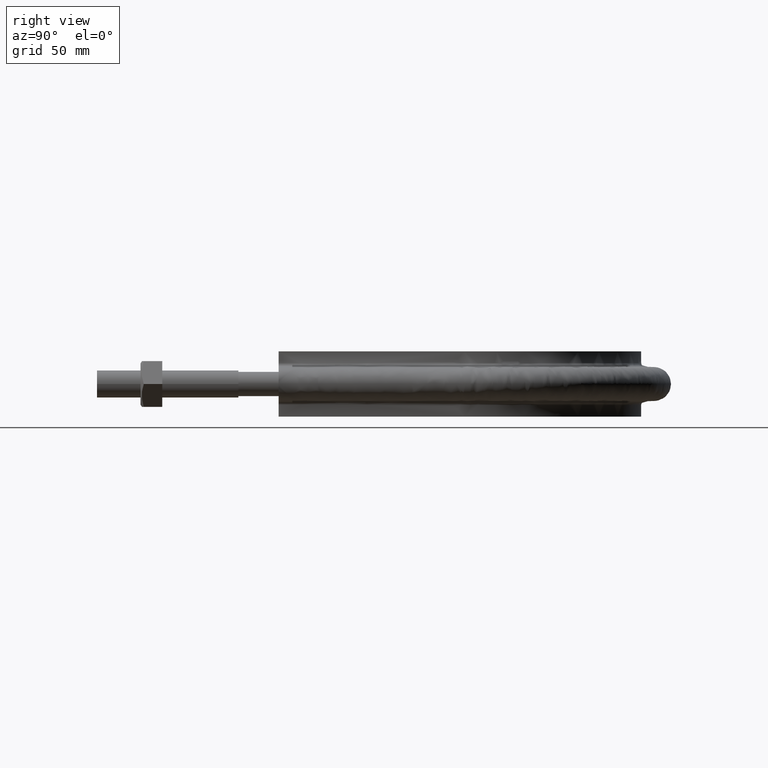
[diagram: clean part render]
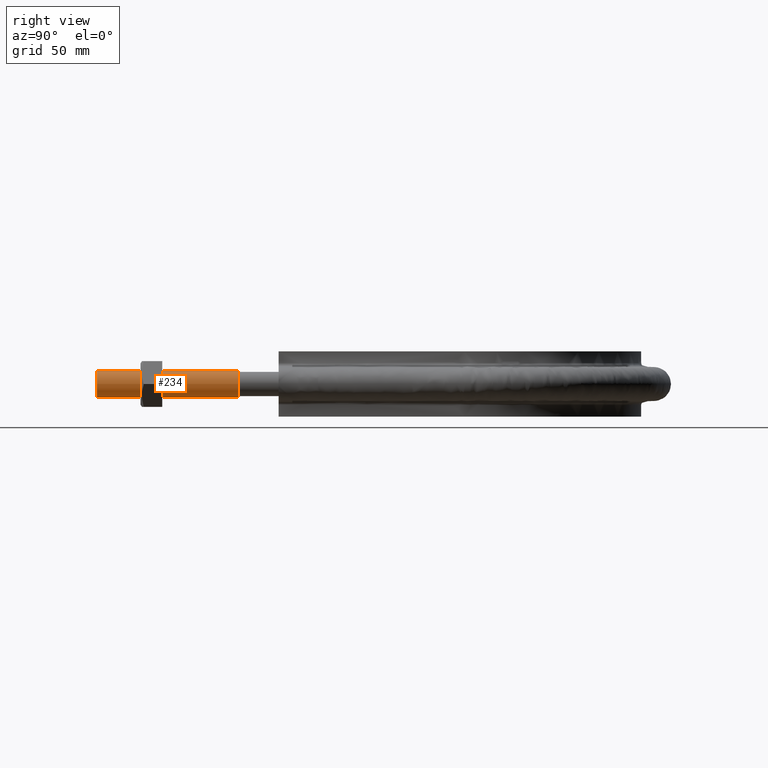
[diagram: same view with one face highlighted and labeled with its STEP entity id]
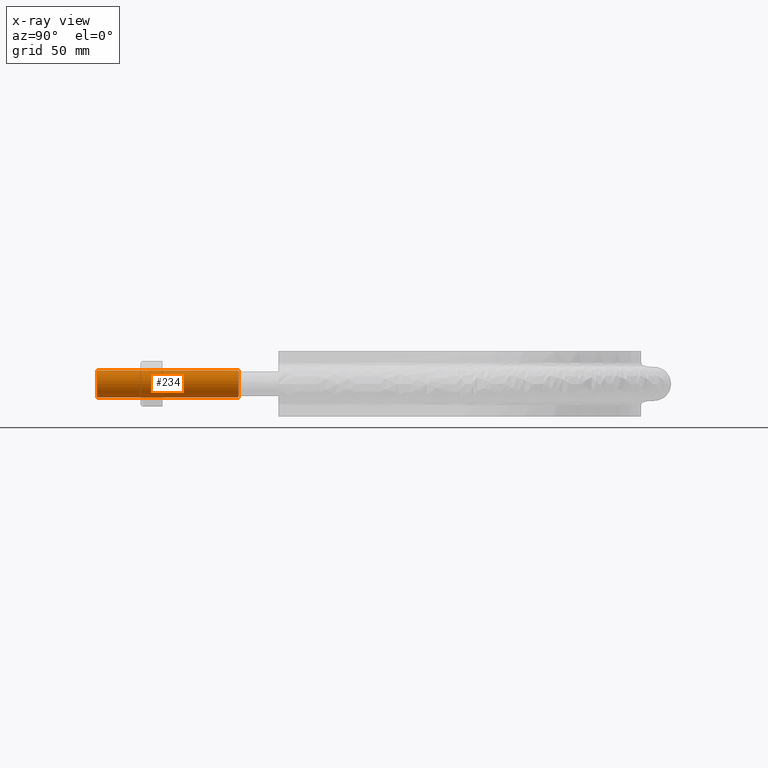
[diagram: x-ray of the same camera — body ghosted, the highlighted face saturated]
A machine part, right view. The second image highlights one B-rep face of the part: STEP entity #234.
The next image is the same camera in x-ray: the body ghosted, the highlighted face saturated — about 0% of this face is hidden behind the body in this view.
In plain terms, the highlighted cylindrical surface (bore or boss wall) has radius 6.25 mm, axis along (0, 1, -0).
Its self-contained STEP definition (entity closure, byte-faithful):
#234 = ADVANCED_FACE( '', ( #299, #300 ), #301, .T. );
#299 = FACE_OUTER_BOUND( '', #1300, .T. );
#300 = FACE_OUTER_BOUND( '', #1301, .T. );
#301 = CYLINDRICAL_SURFACE( '', #1302, 6.25000000000001 );
#1300 = EDGE_LOOP( '', ( #1484 ) );
#1301 = EDGE_LOOP( '', ( #1485 ) );
#1302 = AXIS2_PLACEMENT_3D( '', #1486, #1487, #1488 );
#1484 = ORIENTED_EDGE( '', *, *, #1688, .T. );
#1485 = ORIENTED_EDGE( '', *, *, #1686, .F. );
#1486 = CARTESIAN_POINT( '', ( 91.0000000000000, 65.0000000000000, -1.98998532496136E-014 ) );
#1487 = DIRECTION( '', ( 2.44921270764476E-016, 1.00000000000000, -3.06151588455594E-016 ) );
#1488 = DIRECTION( '', ( 1.00000000000000, -2.44921270764475E-016, 0.000000000000000 ) );
#1686 = EDGE_CURVE( '', #1797, #1797, #1798, .T. );
#1688 = EDGE_CURVE( '', #1801, #1801, #1802, .T. );
#1797 = VERTEX_POINT( '', #2143 );
#1798 = CIRCLE( '', #2144, 6.25000000000001 );
#1801 = VERTEX_POINT( '', #2147 );
#1802 = CIRCLE( '', #2148, 6.25000000000001 );
#2143 = CARTESIAN_POINT( '', ( 97.2500000000000, -1.26746757620616E-014, 0.000000000000000 ) );
#2144 = AXIS2_PLACEMENT_3D( '', #2400, #2401, #2402 );
#2147 = CARTESIAN_POINT( '', ( 97.2500000000000, 65.0000000000000, -1.98998532496136E-014 ) );
#2148 = AXIS2_PLACEMENT_3D( '', #2406, #2407, #2408 );
#2400 = CARTESIAN_POINT( '', ( 91.0000000000000, -1.11439178197836E-014, 0.000000000000000 ) );
#2401 = DIRECTION( '', ( -2.44921270764476E-016, -1.00000000000000, 3.06151588455594E-016 ) );
#2402 = DIRECTION( '', ( 1.00000000000000, -2.44921270764475E-016, 0.000000000000000 ) );
#2406 = CARTESIAN_POINT( '', ( 91.0000000000000, 65.0000000000000, -1.98998532496136E-014 ) );
#2407 = DIRECTION( '', ( -2.44921270764476E-016, -1.00000000000000, 3.06151588455594E-016 ) );
#2408 = DIRECTION( '', ( 1.00000000000000, -2.44921270764475E-016, 0.000000000000000 ) );